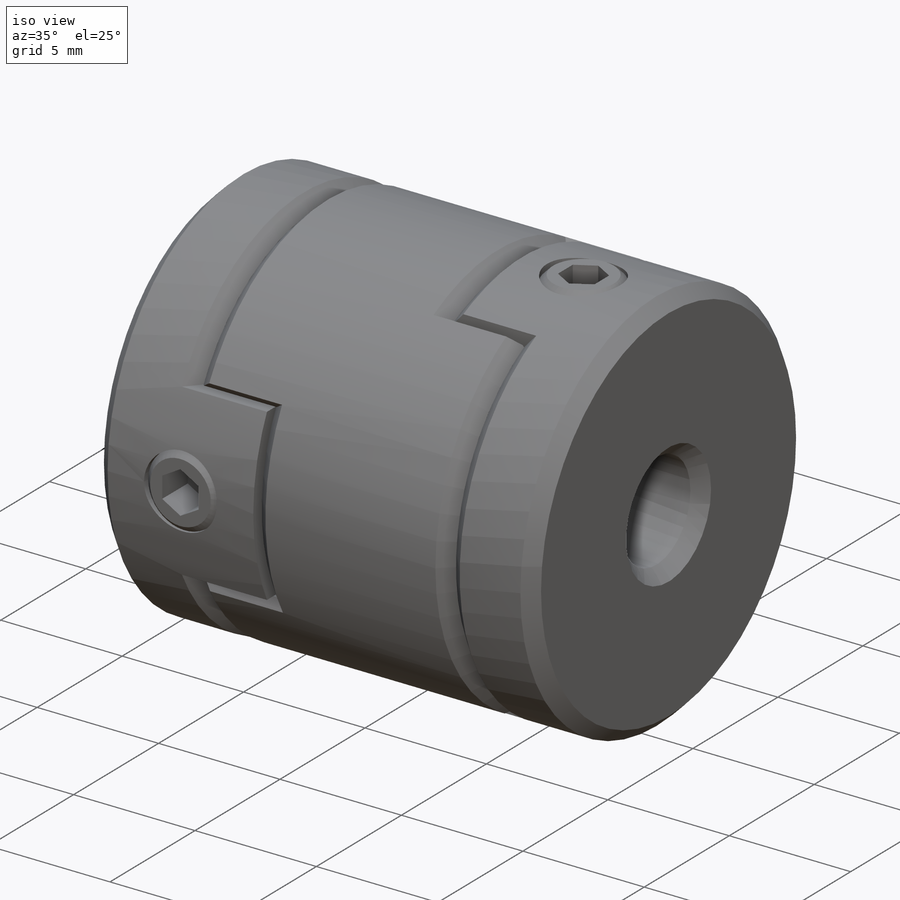
[diagram: iso view]
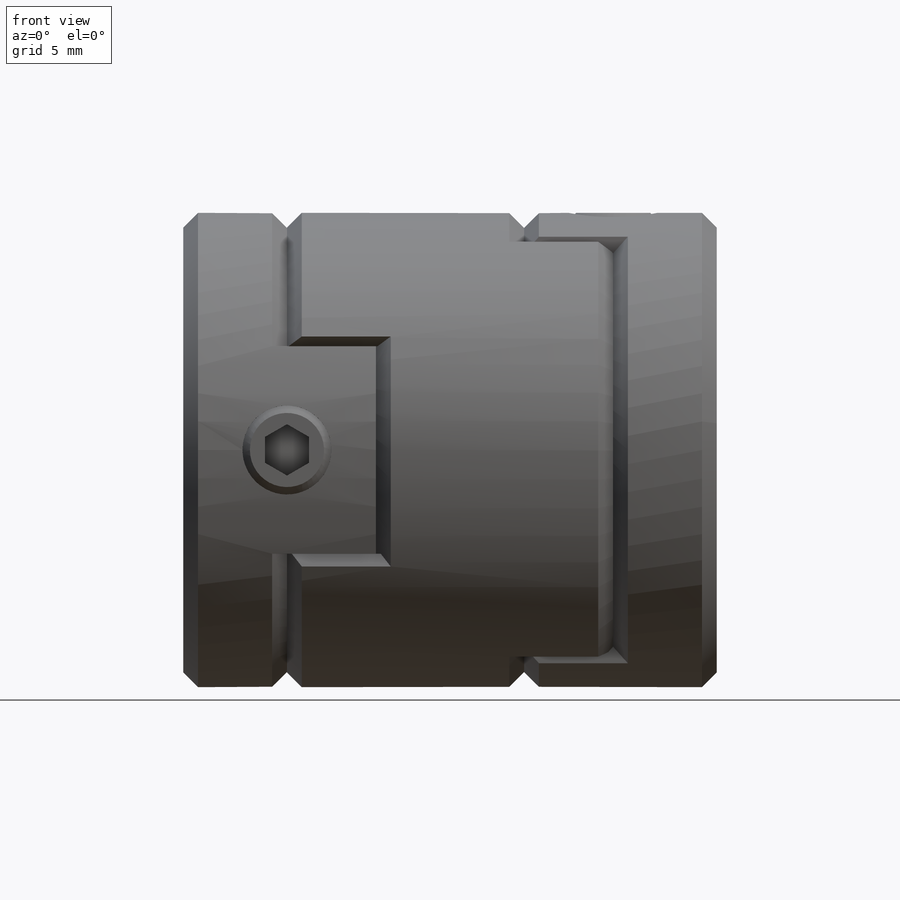
[diagram: front view]
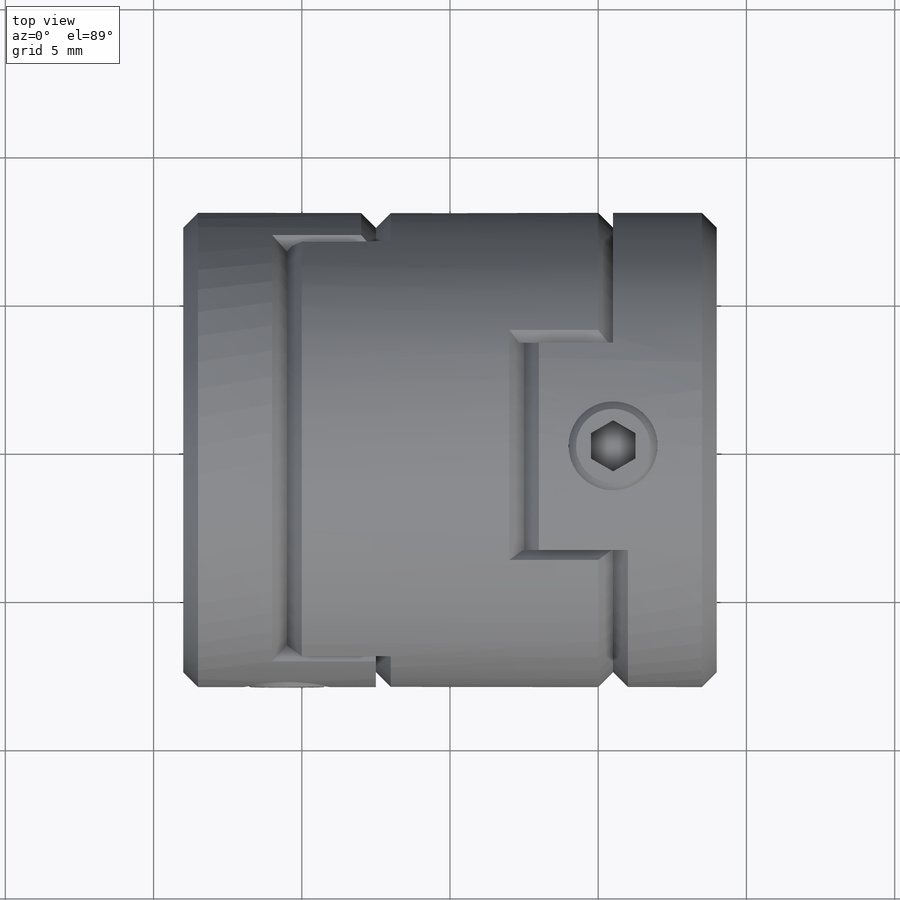
[diagram: top view]
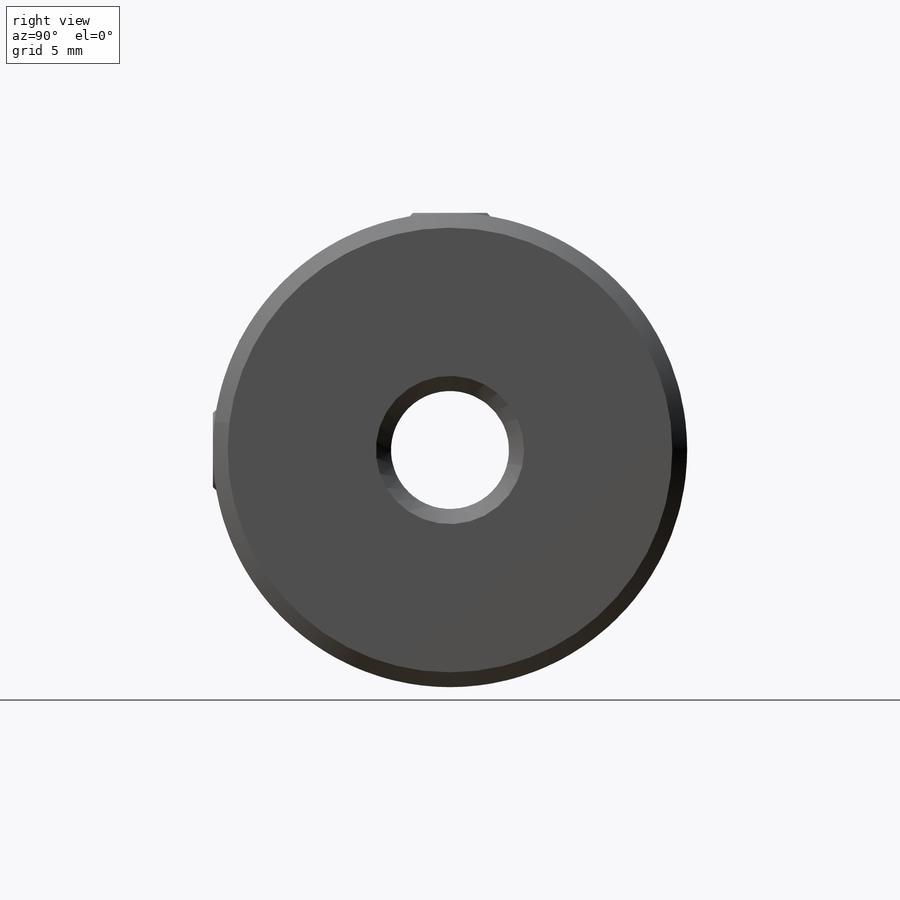
[diagram: right view]
SOLIDWORKS PART (.sldprt)
format: sldprt  version: not decoded by parser v0  size: 588,800 bytes
history: native  units: mm
features: sketch x10, cut_extrude x5, extrude x4, chamfer x4, delete_body x3, mirror x2, pattern_circular x2, material x1, revolve x1 + 1 further entry (+17 scaffold rows collapsed)
feature tree (50):
  scaffold x17  (default folders/planes/origin — collapsed)
  material  "Material <not specified>"
  "Design Table"
  sketch  "Sketch1"  dims[Dim D=16.0mm]
  extrude  "Boss-Extrude1"  Depth=18mm Dim L=18mm
  sketch  "Sketch2"  dims[Dim D2=4.0mm]
  cut_extrude  "Cut-Extrude1"  [1 undecoded]
  sketch  "Sketch3"  dims[Dim M=3.0mm Dim F=3.5mm]
  cut_extrude  "Cut-Extrude2"  [1 undecoded]
  sketch  "Sketch4"
  cut_extrude  "Cut-Extrude3"  [1 undecoded]
  sketch  "Sketch5"
  revolve  "Revolve1"  Angle=360deg
  chamfer  "Chamfer1"  Distance=0.25mm Angle=45deg
  sketch  "Sketch6"  dims[Dim hex=1.5mm]
  cut_extrude  "Cut-Extrude4"  Depth=1.5mm Dim Hex depth=1.5mm
  mirror  "Mirror1"
  pattern_circular  "CirPattern1"  Count=2 Angle=90deg
  delete_body  "Body-Delete1"
  sketch  "Sketch7"  dims[Dim L1=7.0mm]
  cut_extrude  "Cut-Extrude5"  [1 undecoded]
  delete_body  "Body-Delete2"
  mirror  "Mirror3"
  pattern_circular  "CirPattern2"  Count=2 Angle=90deg
  delete_body  "Body-Delete3"
  sketch  "Sketch8"
  extrude  "Boss-Extrude2"  [1 undecoded]
  sketch  "Sketch9"
  extrude  "Boss-Extrude3"  [1 undecoded]
  sketch  "Sketch10"
  extrude  "Boss-Extrude4"  [1 undecoded]
  chamfer  "Chamfer2"  Distance=0.5mm Angle=45deg
  chamfer  "Chamfer3"  Distance=0.5mm Angle=45deg
  chamfer  "Chamfer4"  Distance=0.5mm Angle=45deg
decode coverage: 14 of 31 modeling features carry decoded parameters; 1 rows unclassified (native names shown)
note: 7 parameter values undecoded
summary: no parameter record found for 7 features
note: suppression state not decoded; provenance and decode notes live in map.json
